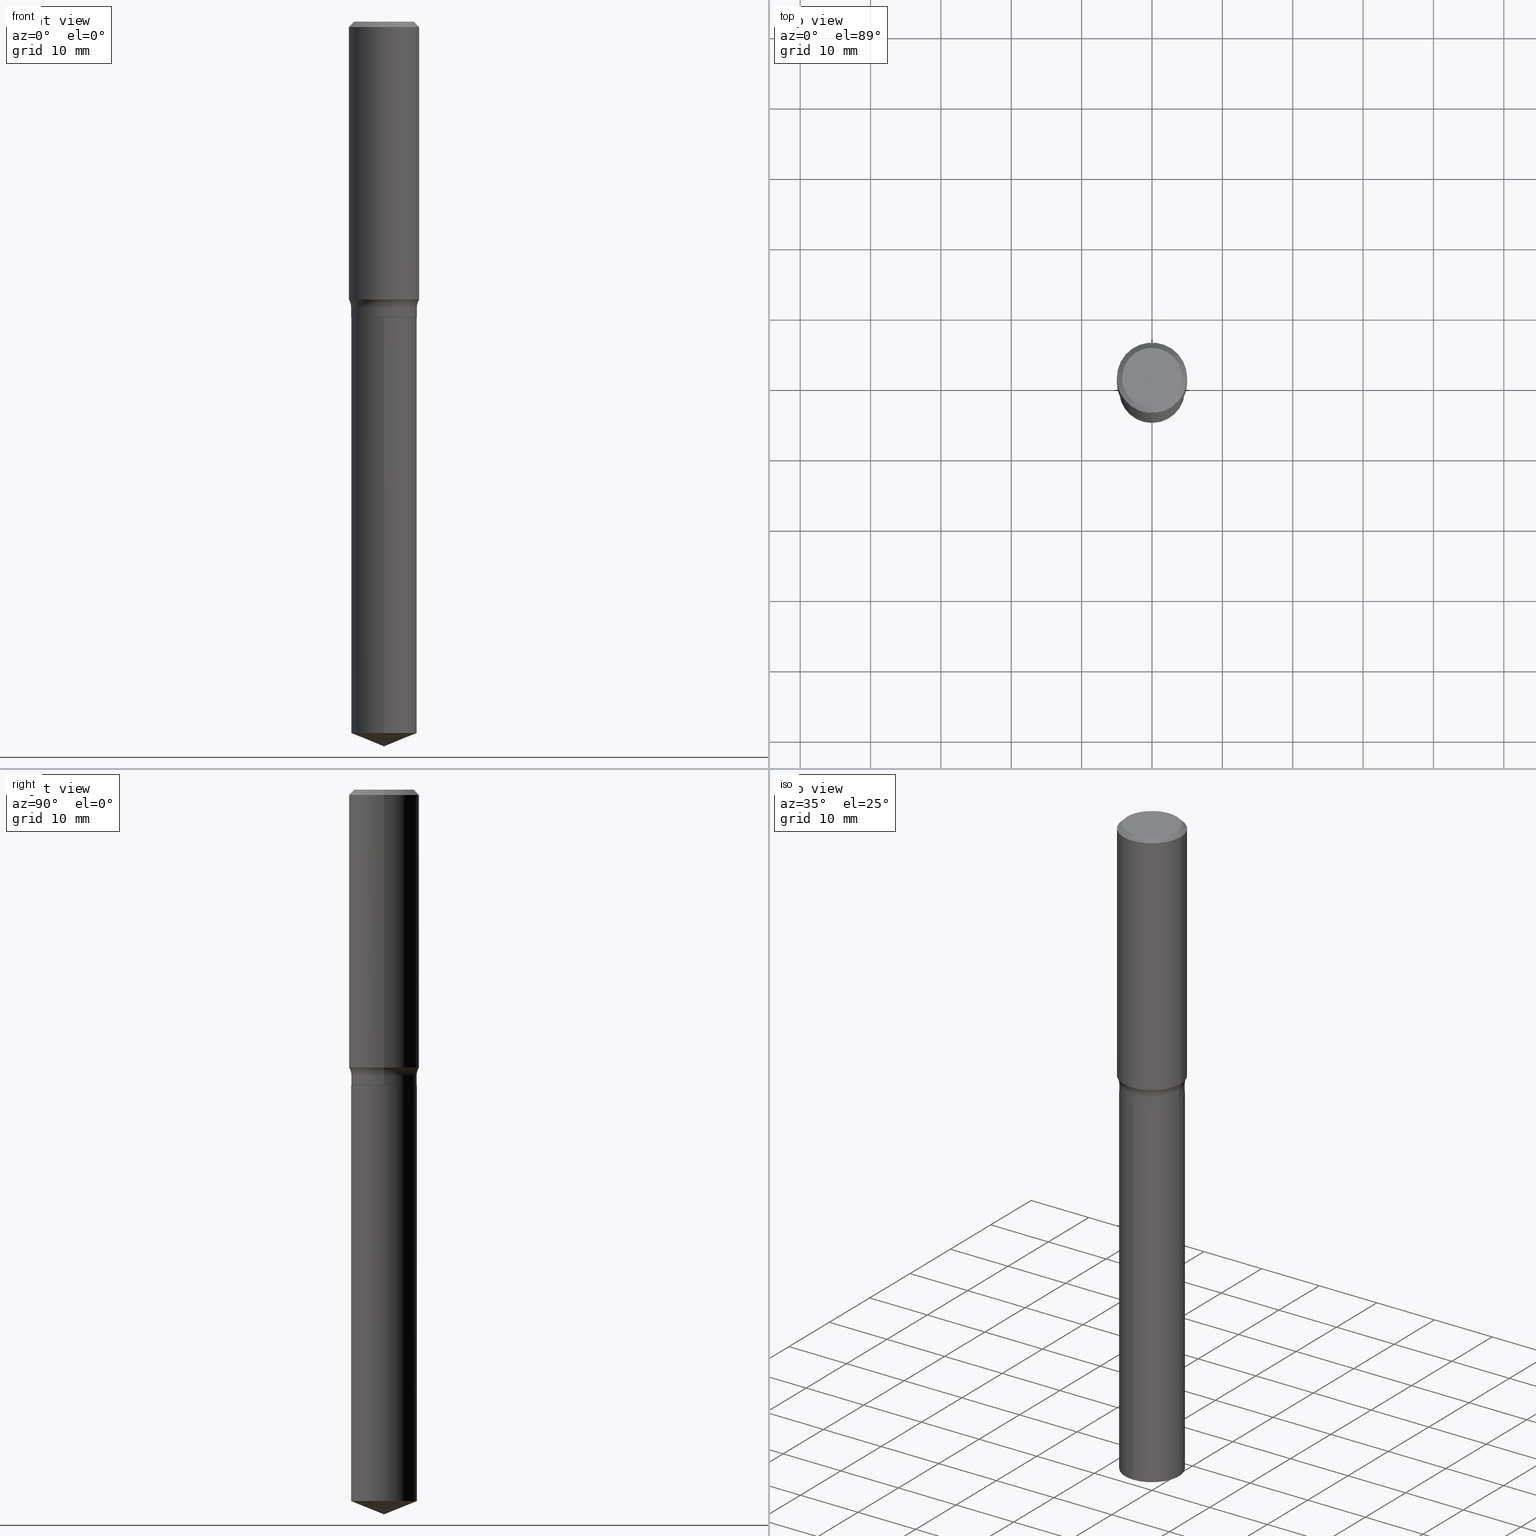
[diagram: canonical four-view strip — front | top / right | iso, engineering-drawing reading convention]
A machine part, canonical four-view strip (front | top / right | iso — engineering-drawing reading convention). The complete STEP part file that produces these views, byte-faithful:
ISO-10303-21;
HEADER;
FILE_DESCRIPTION (( 'STEP AP203' ),
    '1' );
FILE_NAME ('56856.STEP',
    '2024-04-19T14:29:32',
    ( '' ),
    ( '' ),
    'SwSTEP 2.0',
    'SolidWorks 2023',
    '' );
FILE_SCHEMA (( 'CONFIG_CONTROL_DESIGN' ));
ENDSEC;

DATA;
#1 = CARTESIAN_POINT ( 'NONE',  ( 3.907370058522611013E-29, -5.578688883203577685E-15, -1.597799999999999887 ) ) ;
#2 = VERTEX_POINT ( 'NONE', #128 ) ;
#3 = EDGE_CURVE ( 'NONE', #75, #169, #244, .T. ) ;
#4 = CC_DESIGN_APPROVAL ( #29, ( #351 ) ) ;
#5 = FACE_OUTER_BOUND ( 'NONE', #353, .T. ) ;
#6 = ORIENTED_EDGE ( 'NONE', *, *, #257, .T. ) ;
#7 = EDGE_CURVE ( 'NONE', #193, #320, #487, .T. ) ;
#8 = DIRECTION ( 'NONE',  ( 1.000000000000000000, -6.982962677686264344E-15, 0.000000000000000000 ) ) ;
#9 = ORIENTED_EDGE ( 'NONE', *, *, #3, .T. ) ;
#10 = CARTESIAN_POINT ( 'NONE',  ( 0.000000000000000000, 0.000000000000000000, 0.000000000000000000 ) ) ;
#11 = ORIENTED_EDGE ( 'NONE', *, *, #290, .T. ) ;
#12 = AXIS2_PLACEMENT_3D ( 'NONE', #32, #179, #483 ) ;
#13 = APPROVAL_DATE_TIME ( #348, #305 ) ;
#14 = ORIENTED_EDGE ( 'NONE', *, *, #85, .F. ) ;
#15 = CARTESIAN_POINT ( 'NONE',  ( -0.2620000000000000107, -3.717066915512115123E-15, -1.597799999999999887 ) ) ;
#16 = CC_DESIGN_PERSON_AND_ORGANIZATION_ASSIGNMENT ( #59, #208, ( #351 ) ) ;
#17 = EDGE_LOOP ( 'NONE', ( #84, #119 ) ) ;
#18 = PERSON_AND_ORGANIZATION ( #44, #374 ) ;
#19 = CARTESIAN_POINT ( 'NONE',  ( 4.043338124146504977E-29, -5.772815245643255982E-15, -1.653399999999999981 ) ) ;
#20 = DIRECTION ( 'NONE',  ( 1.000000000000000000, -6.982962677686266711E-15, 0.000000000000000000 ) ) ;
#21 = ORIENTED_EDGE ( 'NONE', *, *, #182, .T. ) ;
#22 = PERSON_AND_ORGANIZATION ( #44, #374 ) ;
#23 = CARTESIAN_POINT ( 'NONE',  ( 0.1968500000000001915, -6.803538488138588411E-15, -1.554910869675405705 ) ) ;
#24 = CARTESIAN_POINT ( 'NONE',  ( 4.042115389743411055E-29, -5.771069504973833690E-15, -1.652899999999999814 ) ) ;
#25 = DIRECTION ( 'NONE',  ( -2.445468806185136877E-29, 3.491481338843145188E-15, 1.000000000000000000 ) ) ;
#26 = CIRCLE ( 'NONE', #165, 0.1673224999999999851 ) ;
#27 = CIRCLE ( 'NONE', #242, 0.1839999999999999969 ) ;
#28 = CARTESIAN_POINT ( 'NONE',  ( 0.1968500000000000527, -1.453583746094018101E-15, -0.02952750000000018554 ) ) ;
#29 = APPROVAL ( #94, 'UNSPECIFIED' ) ;
#30 = DIRECTION ( 'NONE',  ( 1.000000000000000000, -6.982962677686265922E-15, 4.876176775795935793E-29 ) ) ;
#31 = CALENDAR_DATE ( 2024, 19, 4 ) ;
#32 = CARTESIAN_POINT ( 'NONE',  ( 3.907370058522611013E-29, -5.578688883203577685E-15, -1.597799999999999887 ) ) ;
#33 = EDGE_CURVE ( 'NONE', #419, #383, #467, .T. ) ;
#34 = FACE_OUTER_BOUND ( 'NONE', #145, .T. ) ;
#35 = DIRECTION ( 'NONE',  ( -2.445468806185136877E-29, 3.491481338843145188E-15, 1.000000000000000000 ) ) ;
#36 = ORIENTED_EDGE ( 'NONE', *, *, #232, .F. ) ;
#37 = CARTESIAN_POINT ( 'NONE',  ( 1.307398633798681744E-15, 0.1839999999999861469, -3.980659174446332660 ) ) ;
#38 = EDGE_LOOP ( 'NONE', ( #231, #111, #349, #220 ) ) ;
#39 = CC_DESIGN_APPROVAL ( #235, ( #473 ) ) ;
#40 = DIRECTION ( 'NONE',  ( 1.000000000000000000, -6.982962677686265922E-15, 0.000000000000000000 ) ) ;
#41 = ORIENTED_EDGE ( 'NONE', *, *, #429, .T. ) ;
#42 = DIRECTION ( 'NONE',  ( 6.982962677686265922E-15, 1.000000000000000000, -3.491586749282660968E-15 ) ) ;
#43 = ORIENTED_EDGE ( 'NONE', *, *, #60, .T. ) ;
#44 = PERSON ( 'UNSPECIFIED', 'UNSPECIFIED', 'UNSPECIFIED', ('UNSPECIFIED'), ('UNSPECIFIED'), ('UNSPECIFIED') ) ;
#45 = ORIENTED_EDGE ( 'NONE', *, *, #85, .T. ) ;
#46 = EDGE_CURVE ( 'NONE', #80, #419, #171, .T. ) ;
#47 = AXIS2_PLACEMENT_3D ( 'NONE', #172, #336, #298 ) ;
#48 = AXIS2_PLACEMENT_3D ( 'NONE', #357, #434, #239 ) ;
#49 = CARTESIAN_POINT ( 'NONE',  ( 9.916077529790332067E-29, -1.415838426834118836E-14, -4.054999999999999716 ) ) ;
#50 = CARTESIAN_POINT ( 'NONE',  ( -0.1839999999999999969, -4.367480560290121368E-15, -1.652899999999999814 ) ) ;
#51 = DIRECTION ( 'NONE',  ( -1.000000000000000000, 6.982962677686266711E-15, 0.000000000000000000 ) ) ;
#52 = VERTEX_POINT ( 'NONE', #50 ) ;
#53 = CC_DESIGN_PERSON_AND_ORGANIZATION_ASSIGNMENT ( #470, #278, ( #370 ) ) ;
#54 = ORIENTED_EDGE ( 'NONE', *, *, #69, .T. ) ;
#55 = APPLICATION_CONTEXT ( 'configuration controlled 3d designs of mechanical parts and assemblies' ) ;
#56 = COORDINATED_UNIVERSAL_TIME_OFFSET ( 5, 0, .BEHIND. ) ;
#57 = ORIENTED_EDGE ( 'NONE', *, *, #356, .T. ) ;
#58 = DIRECTION ( 'NONE',  ( -1.000000000000000000, 6.982962677686266711E-15, 0.000000000000000000 ) ) ;
#59 = PERSON_AND_ORGANIZATION ( #44, #374 ) ;
#60 = EDGE_CURVE ( 'NONE', #320, #193, #381, .T. ) ;
#61 = CARTESIAN_POINT ( 'NONE',  ( 7.220858017463207734E-31, -1.030947152326916363E-16, -0.02952750000000018554 ) ) ;
#62 = CLOSED_SHELL ( 'NONE', ( #323, #112, #491, #281, #399 ) ) ;
#63 = CIRCLE ( 'NONE', #312, 0.07799999999999999989 ) ;
#64 = AXIS2_PLACEMENT_3D ( 'NONE', #1, #492, #189 ) ;
#65 = CALENDAR_DATE ( 2024, 19, 4 ) ;
#66 = DIRECTION ( 'NONE',  ( 0.7071067811864267805, -2.468850131080992517E-15, 0.7071067811866682540 ) ) ;
#67 = PERSON_AND_ORGANIZATION ( #44, #374 ) ;
#68 = CARTESIAN_POINT ( 'NONE',  ( 4.043338124146503856E-29, -5.772815245643255193E-15, -1.653399999999999537 ) ) ;
#69 = EDGE_CURVE ( 'NONE', #419, #80, #26, .T. ) ;
#70 = DIRECTION ( 'NONE',  ( 1.000000000000000000, -6.982962677686264344E-15, 0.000000000000000000 ) ) ;
#71 = CONICAL_SURFACE ( 'NONE', #450, 0.1834999999999999964, 0.7853981633972775267 ) ;
#72 = LINE ( 'NONE', #346, #88 ) ;
#73 = EDGE_LOOP ( 'NONE', ( #36, #266, #459, #41 ) ) ;
#74 = CARTESIAN_POINT ( 'NONE',  ( 3.802486028189407095E-29, -5.428942285036045225E-15, -1.554910869675405705 ) ) ;
#75 = VERTEX_POINT ( 'NONE', #201 ) ;
#76 = CARTESIAN_POINT ( 'NONE',  ( -0.1839999999999999969, -4.367480560290121368E-15, -1.597799999999999887 ) ) ;
#77 = CIRCLE ( 'NONE', #86, 0.1968500000000000527 ) ;
#78 = CIRCLE ( 'NONE', #400, 0.1839999999999999969 ) ;
#79 = DIRECTION ( 'NONE',  ( -2.445395198468639385E-29, 3.491586749282660968E-15, 1.000000000000000000 ) ) ;
#80 = VERTEX_POINT ( 'NONE', #360 ) ;
#81 = DIRECTION ( 'NONE',  ( -2.445395198468639385E-29, 3.491586749282660968E-15, 1.000000000000000000 ) ) ;
#82 = EDGE_LOOP ( 'NONE', ( #327, #21, #389, #347 ) ) ;
#83 =( NAMED_UNIT ( * ) PLANE_ANGLE_UNIT ( ) SI_UNIT ( $, .RADIAN. ) );
#84 = ORIENTED_EDGE ( 'NONE', *, *, #60, .F. ) ;
#85 = EDGE_CURVE ( 'NONE', #355, #383, #77, .T. ) ;
#86 = AXIS2_PLACEMENT_3D ( 'NONE', #233, #390, #475 ) ;
#87 = FACE_OUTER_BOUND ( 'NONE', #433, .T. ) ;
#88 = VECTOR ( 'NONE', #423, 39.37007874015748143 ) ;
#89 = CARTESIAN_POINT ( 'NONE',  ( -0.1968500000000000527, 1.271501487869850317E-15, -0.02952750000000018554 ) ) ;
#90 = ADVANCED_FACE ( 'NONE', ( #325 ), #321, .T. ) ;
#91 = CARTESIAN_POINT ( 'NONE',  ( 4.043338124146504977E-29, -5.772815245643255982E-15, -1.653399999999999981 ) ) ;
#92 = DIRECTION ( 'NONE',  ( 0.000000000000000000, 0.000000000000000000, 1.000000000000000000 ) ) ;
#93 = FACE_OUTER_BOUND ( 'NONE', #207, .T. ) ;
#94 = APPROVAL_STATUS ( 'not_yet_approved' ) ;
#95 = CIRCLE ( 'NONE', #259, 0.1839999999999999969 ) ;
#96 = VERTEX_POINT ( 'NONE', #23 ) ;
#97 = AXIS2_PLACEMENT_3D ( 'NONE', #15, #324, #474 ) ;
#98 = DATE_AND_TIME ( #413, #410 ) ;
#99 = DIRECTION ( 'NONE',  ( -6.982962677686266711E-15, -1.000000000000000000, 3.491481338843145583E-15 ) ) ;
#100 = ADVANCED_FACE ( 'NONE', ( #442 ), #123, .F. ) ;
#101 = DATE_TIME_ROLE ( 'classification_date' ) ;
#102 = CARTESIAN_POINT ( 'NONE',  ( 0.2620000000000000107, -7.408225104757379690E-15, -1.597799999999999887 ) ) ;
#103 = LINE ( 'NONE', #412, #456 ) ;
#104 = PERSON_AND_ORGANIZATION_ROLE ( 'classification_officer' ) ;
#105 = DIRECTION ( 'NONE',  ( -6.982962677686265133E-15, -1.000000000000000000, 2.969399993113329585E-15 ) ) ;
#106 = CARTESIAN_POINT ( 'NONE',  ( -0.1834999999999999964, -4.466320098349360965E-15, -1.653399999999999981 ) ) ;
#107 = DIRECTION ( 'NONE',  ( -2.445468806185136597E-29, 3.491481338843145583E-15, 1.000000000000000000 ) ) ;
#108 = ORIENTED_EDGE ( 'NONE', *, *, #378, .T. ) ;
#109 = CIRCLE ( 'NONE', #294, 0.1839999999999999969 ) ;
#110 = LINE ( 'NONE', #262, #392 ) ;
#111 = ORIENTED_EDGE ( 'NONE', *, *, #218, .T. ) ;
#112 = ADVANCED_FACE ( 'NONE', ( #93 ), #147, .T. ) ;
#113 = CARTESIAN_POINT ( 'NONE',  ( -1.284865132694232346E-15, -0.1840000000000057701, -1.653399999999999093 ) ) ;
#114 = ORIENTED_EDGE ( 'NONE', *, *, #297, .T. ) ;
#115 = CARTESIAN_POINT ( 'NONE',  ( -0.1968500000000000527, -1.367315124790610273E-15, -0.02952750000000018554 ) ) ;
#116 = ORIENTED_EDGE ( 'NONE', *, *, #264, .F. ) ;
#117 = AXIS2_PLACEMENT_3D ( 'NONE', #166, #168, #395 ) ;
#118 = DIRECTION ( 'NONE',  ( -2.445395198468639105E-29, 3.491586749282660968E-15, 1.000000000000000000 ) ) ;
#119 = ORIENTED_EDGE ( 'NONE', *, *, #7, .F. ) ;
#120 = DIRECTION ( 'NONE',  ( -2.445468806185136597E-29, 3.491481338843145583E-15, 1.000000000000000000 ) ) ;
#121 = CARTESIAN_POINT ( 'NONE',  ( -1.001697619218021790E-46, 1.430158722866389718E-32, 4.096137381448108366E-18 ) ) ;
#122 = ORIENTED_EDGE ( 'NONE', *, *, #176, .T. ) ;
#123 = TOROIDAL_SURFACE ( 'NONE', #365, 0.2620000000000000107, 0.07799999999999997213 ) ;
#124 = APPROVAL_PERSON_ORGANIZATION ( #138, #235, #401 ) ;
#125 =( CONVERSION_BASED_UNIT ( 'INCH', #230 ) LENGTH_UNIT ( ) NAMED_UNIT ( #249 ) );
#126 = VERTEX_POINT ( 'NONE', #135 ) ;
#127 = CARTESIAN_POINT ( 'NONE',  ( -8.635920228172456826E-28, 1.233058352646283818E-13, 35.31507874015748172 ) ) ;
#128 = CARTESIAN_POINT ( 'NONE',  ( -0.1968500000000001915, -4.030238909692286649E-15, -1.554910869675405705 ) ) ;
#129 = APPLICATION_PROTOCOL_DEFINITION ( 'international standard', 'config_control_design', 1994, #55 ) ;
#130 = ORIENTED_EDGE ( 'NONE', *, *, #476, .T. ) ;
#131 = FACE_OUTER_BOUND ( 'NONE', #268, .T. ) ;
#132 = AXIS2_PLACEMENT_3D ( 'NONE', #258, #310, #151 ) ;
#133 = EDGE_CURVE ( 'NONE', #126, #339, #449, .T. ) ;
#134 = APPROVAL_STATUS ( 'not_yet_approved' ) ;
#135 = CARTESIAN_POINT ( 'NONE',  ( 1.307398633798681744E-15, 0.1839999999999941960, -1.653400000000000203 ) ) ;
#136 = DATE_TIME_ROLE ( 'creation_date' ) ;
#137 = DIRECTION ( 'NONE',  ( 1.000000000000000000, -6.982962677686270655E-15, 0.000000000000000000 ) ) ;
#138 = PERSON_AND_ORGANIZATION ( #44, #374 ) ;
#139 = CYLINDRICAL_SURFACE ( 'NONE', #234, 0.1839999999999999969 ) ;
#140 = CIRCLE ( 'NONE', #48, 0.1968500000000000527 ) ;
#141 = PERSON_AND_ORGANIZATION_ROLE ( 'design_supplier' ) ;
#142 = PLANE ( 'NONE',  #350 ) ;
#143 = DIRECTION ( 'NONE',  ( -2.445468806185136597E-29, 3.491481338843145583E-15, 1.000000000000000000 ) ) ;
#144 = CARTESIAN_POINT ( 'NONE',  ( 3.802486028189407095E-29, -5.428942285036045225E-15, -1.554910869675405705 ) ) ;
#145 = EDGE_LOOP ( 'NONE', ( #431, #238, #380, #402 ) ) ;
#146 = ADVANCED_FACE ( 'NONE', ( #170 ), #142, .F. ) ;
#147 = CONICAL_SURFACE ( 'NONE', #342, 97.44436430773001234, 1.186823891356150629 ) ;
#148 = AXIS2_PLACEMENT_3D ( 'NONE', #183, #79, #149 ) ;
#149 = DIRECTION ( 'NONE',  ( -6.982962677686265133E-15, -1.000000000000000000, 2.969399993113329585E-15 ) ) ;
#150 = ORIENTED_EDGE ( 'NONE', *, *, #274, .F. ) ;
#151 = DIRECTION ( 'NONE',  ( -6.982962677686265133E-15, -1.000000000000000000, 2.969399993113329585E-15 ) ) ;
#152 = EDGE_LOOP ( 'NONE', ( #122, #443 ) ) ;
#153 = EDGE_CURVE ( 'NONE', #304, #154, #369, .T. ) ;
#154 = VERTEX_POINT ( 'NONE', #333 ) ;
#155 = VECTOR ( 'NONE', #478, 39.37007874015748143 ) ;
#156 = APPROVAL_PERSON_ORGANIZATION ( #18, #305, #162 ) ;
#157 = APPROVAL_STATUS ( 'not_yet_approved' ) ;
#158 = ORIENTED_EDGE ( 'NONE', *, *, #384, .F. ) ;
#159 = CARTESIAN_POINT ( 'NONE',  ( 0.000000000000000000, 0.000000000000000000, 0.000000000000000000 ) ) ;
#160 = ORIENTED_EDGE ( 'NONE', *, *, #356, .F. ) ;
#161 = EDGE_CURVE ( 'NONE', #154, #343, #398, .T. ) ;
#162 = APPROVAL_ROLE ( '' ) ;
#163 = DIRECTION ( 'NONE',  ( -6.474490251793192828E-15, -0.9271838545667884235, 0.3746065934159091837 ) ) ;
#164 = EDGE_CURVE ( 'NONE', #343, #154, #241, .T. ) ;
#165 = AXIS2_PLACEMENT_3D ( 'NONE', #435, #440, #198 ) ;
#166 = CARTESIAN_POINT ( 'NONE',  ( 0.000000000000000000, 0.000000000000000000, 0.000000000000000000 ) ) ;
#167 = DIRECTION ( 'NONE',  ( -2.445468806185136597E-29, 3.491481338843145583E-15, 1.000000000000000000 ) ) ;
#168 = DIRECTION ( 'NONE',  ( -2.445468806185136597E-29, 3.491481338843145583E-15, 1.000000000000000000 ) ) ;
#169 = VERTEX_POINT ( 'NONE', #212 ) ;
#170 = FACE_OUTER_BOUND ( 'NONE', #17, .T. ) ;
#171 = CIRCLE ( 'NONE', #471, 0.1673224999999999851 ) ;
#172 = CARTESIAN_POINT ( 'NONE',  ( 3.907370058522611013E-29, -5.578688883203577685E-15, -1.597799999999999887 ) ) ;
#173 = AXIS2_PLACEMENT_3D ( 'NONE', #367, #292, #448 ) ;
#174 = ADVANCED_FACE ( 'NONE', ( #486 ), #139, .T. ) ;
#175 = DIRECTION ( 'NONE',  ( -6.982962677686265133E-15, -1.000000000000000000, 3.498761904101770760E-15 ) ) ;
#176 = EDGE_CURVE ( 'NONE', #339, #126, #216, .T. ) ;
#177 = DIRECTION ( 'NONE',  ( 1.000000000000000000, -6.982962677686267499E-15, 4.883557194083114022E-29 ) ) ;
#178 = SHAPE_DEFINITION_REPRESENTATION ( #368, #203 ) ;
#179 = DIRECTION ( 'NONE',  ( -2.445468806185136597E-29, 3.491481338843145583E-15, 1.000000000000000000 ) ) ;
#180 = CIRCLE ( 'NONE', #227, 0.1968500000000002192 ) ;
#181 = CYLINDRICAL_SURFACE ( 'NONE', #148, 0.1839999999999999969 ) ;
#182 = EDGE_CURVE ( 'NONE', #52, #343, #210, .T. ) ;
#183 = CARTESIAN_POINT ( 'NONE',  ( 4.043338124146503856E-29, -5.772815245643255193E-15, -1.653399999999999537 ) ) ;
#184 = ORIENTED_EDGE ( 'NONE', *, *, #318, .T. ) ;
#185 = DIRECTION ( 'NONE',  ( -6.982962677686265133E-15, -1.000000000000000000, 2.969399993113329585E-15 ) ) ;
#186 = ORIENTED_EDGE ( 'NONE', *, *, #33, .F. ) ;
#187 = EDGE_CURVE ( 'NONE', #96, #154, #63, .T. ) ;
#188 = CONICAL_SURFACE ( 'NONE', #313, 0.1968500000000000527, 0.7853981633974460586 ) ;
#189 = DIRECTION ( 'NONE',  ( 1.000000000000000000, -6.982962677686267499E-15, 4.883557194083114022E-29 ) ) ;
#190 = EDGE_LOOP ( 'NONE', ( #54, #284 ) ) ;
#191 = CC_DESIGN_DATE_AND_TIME_ASSIGNMENT ( #98, #101, ( #473 ) ) ;
#192 = CYLINDRICAL_SURFACE ( 'NONE', #488, 0.1839999999999999969 ) ;
#193 = VERTEX_POINT ( 'NONE', #106 ) ;
#194 = CALENDAR_DATE ( 2024, 19, 4 ) ;
#195 = ORIENTED_EDGE ( 'NONE', *, *, #476, .F. ) ;
#196 = VECTOR ( 'NONE', #25, 39.37007874015748143 ) ;
#197 = TOROIDAL_SURFACE ( 'NONE', #64, 0.2620000000000000107, 0.07799999999999997213 ) ;
#198 = DIRECTION ( 'NONE',  ( 1.000000000000000000, -6.982962677686267499E-15, 4.876294436782262290E-29 ) ) ;
#199 =( LENGTH_UNIT ( ) NAMED_UNIT ( * ) SI_UNIT ( $, .METRE. ) );
#200 = CC_DESIGN_PERSON_AND_ORGANIZATION_ASSIGNMENT ( #22, #275, ( #484 ) ) ;
#201 = CARTESIAN_POINT ( 'NONE',  ( 9.916077529790332067E-29, -1.415838426834118836E-14, -4.054999999999999716 ) ) ;
#202 = DIRECTION ( 'NONE',  ( 1.000000000000000000, -6.982962677686267499E-15, 4.876176775795935793E-29 ) ) ;
#203 = ADVANCED_BREP_SHAPE_REPRESENTATION ( '56856', ( #425, #252, #438 ), #211 ) ;
#204 = FACE_OUTER_BOUND ( 'NONE', #73, .T. ) ;
#205 = ORIENTED_EDGE ( 'NONE', *, *, #257, .F. ) ;
#206 = ADVANCED_FACE ( 'NONE', ( #256 ), #416, .T. ) ;
#207 = EDGE_LOOP ( 'NONE', ( #276, #422, #205 ) ) ;
#208 = PERSON_AND_ORGANIZATION_ROLE ( 'creator' ) ;
#209 = CARTESIAN_POINT ( 'NONE',  ( 2.324487579557410015E-29, -8.234307056392298500E-15, -1.653399999999999981 ) ) ;
#210 = LINE ( 'NONE', #364, #196 ) ;
#211 =( GEOMETRIC_REPRESENTATION_CONTEXT ( 3 ) GLOBAL_UNCERTAINTY_ASSIGNED_CONTEXT ( ( #404 ) ) GLOBAL_UNIT_ASSIGNED_CONTEXT ( ( #125, #83, #436 ) ) REPRESENTATION_CONTEXT ( 'NONE', 'WORKASPACE' ) );
#212 = CARTESIAN_POINT ( 'NONE',  ( -1.284865132694176337E-15, -0.1840000000000139579, -3.980659174446331772 ) ) ;
#213 = SECURITY_CLASSIFICATION_LEVEL ( 'unclassified' ) ;
#214 = CARTESIAN_POINT ( 'NONE',  ( 3.907370058522611013E-29, -5.578688883203577685E-15, -1.597799999999999887 ) ) ;
#215 = PLANE ( 'NONE',  #329 ) ;
#216 = CIRCLE ( 'NONE', #302, 0.1839999999999999969 ) ;
#217 = VECTOR ( 'NONE', #118, 39.37007874015748143 ) ;
#218 = EDGE_CURVE ( 'NONE', #52, #304, #95, .T. ) ;
#219 = DIRECTION ( 'NONE',  ( -2.445468806185136597E-29, 3.491481338843145583E-15, 1.000000000000000000 ) ) ;
#220 = ORIENTED_EDGE ( 'NONE', *, *, #164, .F. ) ;
#221 = CARTESIAN_POINT ( 'NONE',  ( 1.307398633798624552E-15, 0.1839999999999942237, -1.653400000000000203 ) ) ;
#222 = ADVANCED_FACE ( 'NONE', ( #330 ), #215, .F. ) ;
#223 = ORIENTED_EDGE ( 'NONE', *, *, #218, .F. ) ;
#224 = CARTESIAN_POINT ( 'NONE',  ( 0.1968500000000000527, -1.477690918335233688E-15, -0.02952750000000018554 ) ) ;
#225 = ORIENTED_EDGE ( 'NONE', *, *, #378, .F. ) ;
#226 = VECTOR ( 'NONE', #163, 39.37007874015748854 ) ;
#227 = AXIS2_PLACEMENT_3D ( 'NONE', #74, #219, #267 ) ;
#228 = LINE ( 'NONE', #337, #359 ) ;
#229 = ORIENTED_EDGE ( 'NONE', *, *, #232, .T. ) ;
#230 = LENGTH_MEASURE_WITH_UNIT ( LENGTH_MEASURE( 0.02539999999999999897 ), #199 );
#231 = ORIENTED_EDGE ( 'NONE', *, *, #182, .F. ) ;
#232 = EDGE_CURVE ( 'NONE', #80, #355, #328, .T. ) ;
#233 = CARTESIAN_POINT ( 'NONE',  ( 7.220858017463207734E-31, -1.030947152326916363E-16, -0.02952750000000018554 ) ) ;
#234 = AXIS2_PLACEMENT_3D ( 'NONE', #405, #295, #451 ) ;
#235 = APPROVAL ( #134, 'UNSPECIFIED' ) ;
#236 = DIRECTION ( 'NONE',  ( -0.7071067811865459074, 2.468850131082240100E-15, -0.7071067811865491270 ) ) ;
#237 = CARTESIAN_POINT ( 'NONE',  ( 4.043338124146504977E-29, -5.772815245643255982E-15, -1.653399999999999981 ) ) ;
#238 = ORIENTED_EDGE ( 'NONE', *, *, #334, .T. ) ;
#239 = DIRECTION ( 'NONE',  ( 1.000000000000000000, -6.982962677686266711E-15, 0.000000000000000000 ) ) ;
#240 = EDGE_LOOP ( 'NONE', ( #311, #477, #57, #345 ) ) ;
#241 = CIRCLE ( 'NONE', #47, 0.1839999999999999969 ) ;
#242 = AXIS2_PLACEMENT_3D ( 'NONE', #432, #143, #8 ) ;
#243 = COORDINATED_UNIVERSAL_TIME_OFFSET ( 5, 0, .BEHIND. ) ;
#244 = LINE ( 'NONE', #49, #226 ) ;
#245 = DIRECTION ( 'NONE',  ( -1.000000000000000000, 6.982962677686265922E-15, -4.876176775795935793E-29 ) ) ;
#246 = CARTESIAN_POINT ( 'NONE',  ( -5.008488096090108951E-47, 7.150793614331948590E-33, 2.048068690724054183E-18 ) ) ;
#247 = CLOSED_SHELL ( 'NONE', ( #406, #206, #248, #363, #403, #174, #100, #455, #411, #222, #146, #90 ) ) ;
#248 = ADVANCED_FACE ( 'NONE', ( #131 ), #407, .T. ) ;
#249 = DIMENSIONAL_EXPONENTS ( 1.000000000000000000, 0.000000000000000000, 0.000000000000000000, 0.000000000000000000, 0.000000000000000000, 0.000000000000000000, 0.000000000000000000 ) ;
#250 = LOCAL_TIME ( 10, 29, 32.00000000000000000, #56 ) ;
#251 = DIRECTION ( 'NONE',  ( 2.445468806185136597E-29, -3.491481338843145583E-15, -1.000000000000000000 ) ) ;
#252 = MANIFOLD_SOLID_BREP ( 'Body-Move/Copy2[2]', #247 ) ;
#253 = COORDINATED_UNIVERSAL_TIME_OFFSET ( 5, 0, .BEHIND. ) ;
#254 = DIRECTION ( 'NONE',  ( -6.982962677686265133E-15, -1.000000000000000000, 2.969399993113329585E-15 ) ) ;
#255 = EDGE_CURVE ( 'NONE', #320, #304, #103, .T. ) ;
#256 = FACE_OUTER_BOUND ( 'NONE', #463, .T. ) ;
#257 = EDGE_CURVE ( 'NONE', #169, #263, #78, .T. ) ;
#258 = CARTESIAN_POINT ( 'NONE',  ( 4.043338124146503856E-29, -5.772815245643255193E-15, -1.653399999999999537 ) ) ;
#259 = AXIS2_PLACEMENT_3D ( 'NONE', #24, #415, #70 ) ;
#260 = LOCAL_TIME ( 10, 29, 32.00000000000000000, #489 ) ;
#261 = ORIENTED_EDGE ( 'NONE', *, *, #297, .F. ) ;
#262 = CARTESIAN_POINT ( 'NONE',  ( -0.1968500000000001082, 1.398703375343757985E-15, -9.682923725166787881E-30 ) ) ;
#263 = VERTEX_POINT ( 'NONE', #37 ) ;
#264 = EDGE_CURVE ( 'NONE', #2, #96, #180, .T. ) ;
#265 = CYLINDRICAL_SURFACE ( 'NONE', #132, 0.1839999999999999969 ) ;
#266 = ORIENTED_EDGE ( 'NONE', *, *, #69, .F. ) ;
#267 = DIRECTION ( 'NONE',  ( 1.000000000000000000, -6.982962677686265922E-15, 0.000000000000000000 ) ) ;
#268 = EDGE_LOOP ( 'NONE', ( #108, #11, #14, #160 ) ) ;
#269 = AXIS2_PLACEMENT_3D ( 'NONE', #344, #462, #42 ) ;
#270 = FACE_OUTER_BOUND ( 'NONE', #358, .T. ) ;
#271 = ORIENTED_EDGE ( 'NONE', *, *, #255, .T. ) ;
#272 = CARTESIAN_POINT ( 'NONE',  ( -0.1673224999999999851, 1.219954130253505460E-15, 4.096137381439757534E-18 ) ) ;
#273 = CARTESIAN_POINT ( 'NONE',  ( 4.043338124146504977E-29, -5.772815245643255982E-15, -1.653399999999999981 ) ) ;
#274 = EDGE_CURVE ( 'NONE', #169, #339, #418, .T. ) ;
#275 = PERSON_AND_ORGANIZATION_ROLE ( 'design_owner' ) ;
#276 = ORIENTED_EDGE ( 'NONE', *, *, #3, .F. ) ;
#277 = LOCAL_TIME ( 10, 29, 32.00000000000000000, #319 ) ;
#278 = PERSON_AND_ORGANIZATION_ROLE ( 'creator' ) ;
#279 = EDGE_LOOP ( 'NONE', ( #43, #114, #158, #377 ) ) ;
#280 = CYLINDRICAL_SURFACE ( 'NONE', #117, 0.1968500000000001082 ) ;
#281 = ADVANCED_FACE ( 'NONE', ( #34 ), #265, .T. ) ;
#282 = DIRECTION ( 'NONE',  ( 1.000000000000000000, -6.982962677686266711E-15, 0.000000000000000000 ) ) ;
#283 = APPLICATION_PROTOCOL_DEFINITION ( 'international standard', 'config_control_design', 1994, #430 ) ;
#284 = ORIENTED_EDGE ( 'NONE', *, *, #46, .T. ) ;
#285 = AXIS2_PLACEMENT_3D ( 'NONE', #144, #385, #40 ) ;
#286 = APPROVAL_DATE_TIME ( #288, #235 ) ;
#287 = DIRECTION ( 'NONE',  ( 2.438088387897960049E-29, -3.491481338843145188E-15, -1.000000000000000000 ) ) ;
#288 = DATE_AND_TIME ( #31, #250 ) ;
#289 = CARTESIAN_POINT ( 'NONE',  ( 4.043338124146503856E-29, -5.772815245643255193E-15, -1.653399999999999537 ) ) ;
#290 = EDGE_CURVE ( 'NONE', #2, #383, #110, .T. ) ;
#291 = APPROVAL_ROLE ( '' ) ;
#292 = DIRECTION ( 'NONE',  ( -2.445468806185136597E-29, 3.491481338843145583E-15, 1.000000000000000000 ) ) ;
#293 = VECTOR ( 'NONE', #447, 39.37007874015748143 ) ;
#294 = AXIS2_PLACEMENT_3D ( 'NONE', #306, #460, #382 ) ;
#295 = DIRECTION ( 'NONE',  ( -2.445468806185136597E-29, 3.491481338843145583E-15, 1.000000000000000000 ) ) ;
#296 = PERSON_AND_ORGANIZATION ( #44, #374 ) ;
#297 = EDGE_CURVE ( 'NONE', #193, #52, #427, .T. ) ;
#298 = DIRECTION ( 'NONE',  ( 1.000000000000000000, -6.982962677686264344E-15, 0.000000000000000000 ) ) ;
#299 = DIRECTION ( 'NONE',  ( -2.445468806185136877E-29, 3.491481338843145188E-15, 1.000000000000000000 ) ) ;
#300 = ORIENTED_EDGE ( 'NONE', *, *, #176, .F. ) ;
#301 = PLANE ( 'NONE',  #269 ) ;
#302 = AXIS2_PLACEMENT_3D ( 'NONE', #289, #452, #105 ) ;
#303 = CONICAL_SURFACE ( 'NONE', #428, 97.44436430773001234, 1.186823891356150629 ) ;
#304 = VERTEX_POINT ( 'NONE', #338 ) ;
#305 = APPROVAL ( #157, 'UNSPECIFIED' ) ;
#306 = CARTESIAN_POINT ( 'NONE',  ( 9.734406534929655028E-29, -1.389864254128657465E-14, -3.980659174446332216 ) ) ;
#307 = ORIENTED_EDGE ( 'NONE', *, *, #161, .T. ) ;
#308 = FACE_OUTER_BOUND ( 'NONE', #152, .T. ) ;
#309 = ORIENTED_EDGE ( 'NONE', *, *, #314, .F. ) ;
#310 = DIRECTION ( 'NONE',  ( -2.445395198468639385E-29, 3.491586749282660968E-15, 1.000000000000000000 ) ) ;
#311 = ORIENTED_EDGE ( 'NONE', *, *, #290, .F. ) ;
#312 = AXIS2_PLACEMENT_3D ( 'NONE', #102, #99, #137 ) ;
#313 = AXIS2_PLACEMENT_3D ( 'NONE', #352, #393, #51 ) ;
#314 = EDGE_CURVE ( 'NONE', #75, #263, #72, .T. ) ;
#315 = ORIENTED_EDGE ( 'NONE', *, *, #46, .F. ) ;
#316 = MECHANICAL_CONTEXT ( 'NONE', #55, 'mechanical' ) ;
#317 = ORIENTED_EDGE ( 'NONE', *, *, #187, .T. ) ;
#318 = EDGE_CURVE ( 'NONE', #263, #126, #458, .T. ) ;
#319 = COORDINATED_UNIVERSAL_TIME_OFFSET ( 5, 0, .BEHIND. ) ;
#320 = VERTEX_POINT ( 'NONE', #341 ) ;
#321 = CONICAL_SURFACE ( 'NONE', #340, 0.1834999999999999964, 0.7853981633972775267 ) ;
#322 = CC_DESIGN_SECURITY_CLASSIFICATION ( #473, ( #351 ) ) ;
#323 = ADVANCED_FACE ( 'NONE', ( #5 ), #181, .T. ) ;
#324 = DIRECTION ( 'NONE',  ( 7.105427357601001859E-15, 1.000000000000000000, -3.491481338843145583E-15 ) ) ;
#325 = FACE_OUTER_BOUND ( 'NONE', #424, .T. ) ;
#326 = DIRECTION ( 'NONE',  ( -6.982962677686265133E-15, -1.000000000000000000, 3.498761904101770760E-15 ) ) ;
#327 = ORIENTED_EDGE ( 'NONE', *, *, #384, .T. ) ;
#328 = LINE ( 'NONE', #28, #155 ) ;
#329 = AXIS2_PLACEMENT_3D ( 'NONE', #246, #287, #245 ) ;
#330 = FACE_OUTER_BOUND ( 'NONE', #190, .T. ) ;
#331 = CC_DESIGN_PERSON_AND_ORGANIZATION_ASSIGNMENT ( #482, #104, ( #473 ) ) ;
#332 = CARTESIAN_POINT ( 'NONE',  ( 0.1839999999999999969, -1.284865132694273169E-15, 8.972165267464521691E-30 ) ) ;
#333 = CARTESIAN_POINT ( 'NONE',  ( 0.1839999999999999969, -6.863554015897850066E-15, -1.597799999999999887 ) ) ;
#334 = EDGE_CURVE ( 'NONE', #263, #169, #109, .T. ) ;
#335 = DATE_AND_TIME ( #371, #366 ) ;
#336 = DIRECTION ( 'NONE',  ( -2.445468806185136597E-29, 3.491481338843145583E-15, 1.000000000000000000 ) ) ;
#337 = CARTESIAN_POINT ( 'NONE',  ( 0.1968500000000001082, -1.374596203102542397E-15, 9.598753983154305062E-30 ) ) ;
#338 = CARTESIAN_POINT ( 'NONE',  ( 0.1839999999999999969, -7.055934637668106859E-15, -1.652899999999999814 ) ) ;
#339 = VERTEX_POINT ( 'NONE', #113 ) ;
#340 = AXIS2_PLACEMENT_3D ( 'NONE', #91, #468, #396 ) ;
#341 = CARTESIAN_POINT ( 'NONE',  ( 0.1834999999999999964, -7.054188896998686144E-15, -1.653399999999999981 ) ) ;
#342 = AXIS2_PLACEMENT_3D ( 'NONE', #481, #445, #175 ) ;
#343 = VERTEX_POINT ( 'NONE', #76 ) ;
#344 = CARTESIAN_POINT ( 'NONE',  ( 4.043338124146503856E-29, -5.772815245643255193E-15, -1.653399999999999537 ) ) ;
#345 = ORIENTED_EDGE ( 'NONE', *, *, #429, .F. ) ;
#346 = CARTESIAN_POINT ( 'NONE',  ( 9.916323070170521281E-29, -1.415803569709979862E-14, -4.054999999999999716 ) ) ;
#347 = ORIENTED_EDGE ( 'NONE', *, *, #153, .F. ) ;
#348 = DATE_AND_TIME ( #194, #277 ) ;
#349 = ORIENTED_EDGE ( 'NONE', *, *, #153, .T. ) ;
#350 = AXIS2_PLACEMENT_3D ( 'NONE', #209, #490, #30 ) ;
#351 = PRODUCT_DEFINITION_FORMATION_WITH_SPECIFIED_SOURCE ( 'ANY', '', #484, .NOT_KNOWN. ) ;
#352 = CARTESIAN_POINT ( 'NONE',  ( 7.220858017463207734E-31, -1.030947152326916363E-16, -0.02952750000000018554 ) ) ;
#353 = EDGE_LOOP ( 'NONE', ( #6, #184, #300, #150 ) ) ;
#354 = DIRECTION ( 'NONE',  ( 1.000000000000000000, 0.000000000000000000, 0.000000000000000000 ) ) ;
#355 = VERTEX_POINT ( 'NONE', #224 ) ;
#356 = EDGE_CURVE ( 'NONE', #96, #355, #228, .T. ) ;
#357 = CARTESIAN_POINT ( 'NONE',  ( 7.220858017463207734E-31, -1.030947152326916363E-16, -0.02952750000000018554 ) ) ;
#358 = EDGE_LOOP ( 'NONE', ( #116, #130, #454, #386 ) ) ;
#359 = VECTOR ( 'NONE', #299, 39.37007874015748143 ) ;
#360 = CARTESIAN_POINT ( 'NONE',  ( 0.1673224999999999851, -1.300749711163072594E-15, 4.096137381456741925E-18 ) ) ;
#361 = EDGE_LOOP ( 'NONE', ( #195, #225, #317, #307 ) ) ;
#362 = APPROVAL_DATE_TIME ( #485, #29 ) ;
#363 = ADVANCED_FACE ( 'NONE', ( #270 ), #197, .F. ) ;
#364 = CARTESIAN_POINT ( 'NONE',  ( -0.1839999999999999969, 1.307398633798584320E-15, -9.050840566069027961E-30 ) ) ;
#365 = AXIS2_PLACEMENT_3D ( 'NONE', #214, #414, #177 ) ;
#366 = LOCAL_TIME ( 10, 29, 32.00000000000000000, #243 ) ;
#367 = CARTESIAN_POINT ( 'NONE',  ( 0.000000000000000000, 0.000000000000000000, 0.000000000000000000 ) ) ;
#368 = PRODUCT_DEFINITION_SHAPE ( 'NONE', 'NONE',  #370 ) ;
#369 = LINE ( 'NONE', #332, #293 ) ;
#370 = PRODUCT_DEFINITION ( 'UNKNOWN', '', #351, #446 ) ;
#371 = CALENDAR_DATE ( 2024, 19, 4 ) ;
#372 = DIRECTION ( 'NONE',  ( -2.445395198468639385E-29, 3.491586749282660968E-15, 1.000000000000000000 ) ) ;
#373 = AXIS2_PLACEMENT_3D ( 'NONE', #61, #251, #58 ) ;
#374 = ORGANIZATION ( 'UNSPECIFIED', 'UNSPECIFIED', '' ) ;
#375 = CARTESIAN_POINT ( 'NONE',  ( 9.734406534929655028E-29, -1.389864254128657465E-14, -3.980659174446332216 ) ) ;
#376 = CARTESIAN_POINT ( 'NONE',  ( -1.284865132694232346E-15, -0.1840000000000057701, -1.653399999999999093 ) ) ;
#377 = ORIENTED_EDGE ( 'NONE', *, *, #255, .F. ) ;
#378 = EDGE_CURVE ( 'NONE', #96, #2, #480, .T. ) ;
#379 = DIRECTION ( 'NONE',  ( -2.445395198468639105E-29, 3.491586749282660968E-15, 1.000000000000000000 ) ) ;
#380 = ORIENTED_EDGE ( 'NONE', *, *, #274, .T. ) ;
#381 = CIRCLE ( 'NONE', #479, 0.1834999999999999964 ) ;
#382 = DIRECTION ( 'NONE',  ( -6.982962677686265133E-15, -1.000000000000000000, 2.969399993113329585E-15 ) ) ;
#383 = VERTEX_POINT ( 'NONE', #115 ) ;
#384 = EDGE_CURVE ( 'NONE', #304, #52, #27, .T. ) ;
#385 = DIRECTION ( 'NONE',  ( -2.445468806185136597E-29, 3.491481338843145583E-15, 1.000000000000000000 ) ) ;
#386 = ORIENTED_EDGE ( 'NONE', *, *, #187, .F. ) ;
#387 = PRODUCT_RELATED_PRODUCT_CATEGORY ( 'detail', '', ( #484 ) ) ;
#388 = FACE_OUTER_BOUND ( 'NONE', #240, .T. ) ;
#389 = ORIENTED_EDGE ( 'NONE', *, *, #161, .F. ) ;
#390 = DIRECTION ( 'NONE',  ( -2.445468806185136597E-29, 3.491481338843145583E-15, 1.000000000000000000 ) ) ;
#391 = VECTOR ( 'NONE', #236, 39.37007874015748143 ) ;
#392 = VECTOR ( 'NONE', #35, 39.37007874015748143 ) ;
#393 = DIRECTION ( 'NONE',  ( 2.445468806185136597E-29, -3.491481338843145583E-15, -1.000000000000000000 ) ) ;
#394 = DIRECTION ( 'NONE',  ( 1.000000000000000000, -6.982962677686267499E-15, 4.876294436782262290E-29 ) ) ;
#395 = DIRECTION ( 'NONE',  ( 1.000000000000000000, -6.982962677686266711E-15, 4.876176775795935793E-29 ) ) ;
#396 = DIRECTION ( 'NONE',  ( 1.000000000000000000, -6.982962677686266711E-15, 0.000000000000000000 ) ) ;
#397 = DIRECTION ( 'NONE',  ( -2.445468806185136597E-29, 3.491481338843145583E-15, 1.000000000000000000 ) ) ;
#398 = CIRCLE ( 'NONE', #12, 0.1839999999999999969 ) ;
#399 = ADVANCED_FACE ( 'NONE', ( #308 ), #301, .F. ) ;
#400 = AXIS2_PLACEMENT_3D ( 'NONE', #375, #81, #185 ) ;
#401 = APPROVAL_ROLE ( '' ) ;
#402 = ORIENTED_EDGE ( 'NONE', *, *, #133, .F. ) ;
#403 = ADVANCED_FACE ( 'NONE', ( #453 ), #192, .T. ) ;
#404 = UNCERTAINTY_MEASURE_WITH_UNIT (LENGTH_MEASURE( 1.000000000000000082E-05 ), #125, 'distance_accuracy_value', 'NONE');
#405 = CARTESIAN_POINT ( 'NONE',  ( 0.000000000000000000, 0.000000000000000000, 0.000000000000000000 ) ) ;
#406 = ADVANCED_FACE ( 'NONE', ( #439 ), #71, .T. ) ;
#407 = CYLINDRICAL_SURFACE ( 'NONE', #173, 0.1968500000000001082 ) ;
#408 = AXIS2_PLACEMENT_3D ( 'NONE', #68, #372, #254 ) ;
#409 = VECTOR ( 'NONE', #464, 39.37007874015748143 ) ;
#410 = LOCAL_TIME ( 10, 29, 32.00000000000000000, #253 ) ;
#411 = ADVANCED_FACE ( 'NONE', ( #204 ), #188, .T. ) ;
#412 = CARTESIAN_POINT ( 'NONE',  ( 0.1834999999999999964, -7.054188896998686144E-15, -1.653399999999999981 ) ) ;
#413 = CALENDAR_DATE ( 2024, 19, 4 ) ;
#414 = DIRECTION ( 'NONE',  ( -2.445468806185136597E-29, 3.491481338843145583E-15, 1.000000000000000000 ) ) ;
#415 = DIRECTION ( 'NONE',  ( -2.445468806185136597E-29, 3.491481338843145583E-15, 1.000000000000000000 ) ) ;
#416 = CONICAL_SURFACE ( 'NONE', #373, 0.1968500000000000527, 0.7853981633974460586 ) ;
#417 = APPROVAL_PERSON_ORGANIZATION ( #67, #29, #291 ) ;
#418 = LINE ( 'NONE', #376, #457 ) ;
#419 = VERTEX_POINT ( 'NONE', #272 ) ;
#420 = CC_DESIGN_PERSON_AND_ORGANIZATION_ASSIGNMENT ( #296, #141, ( #351 ) ) ;
#421 = CARTESIAN_POINT ( 'NONE',  ( -0.1834999999999999964, -4.468969325523472955E-15, -1.653399999999999981 ) ) ;
#422 = ORIENTED_EDGE ( 'NONE', *, *, #314, .T. ) ;
#423 = DIRECTION ( 'NONE',  ( 6.588037525764807068E-15, 0.9271838545667910880, 0.3746065934159027999 ) ) ;
#424 = EDGE_LOOP ( 'NONE', ( #261, #461, #271, #223 ) ) ;
#425 = MANIFOLD_SOLID_BREP ( 'Body-Move/Copy2[1]', #62 ) ;
#426 = AXIS2_PLACEMENT_3D ( 'NONE', #19, #437, #282 ) ;
#427 = LINE ( 'NONE', #421, #409 ) ;
#428 = AXIS2_PLACEMENT_3D ( 'NONE', #127, #441, #326 ) ;
#429 = EDGE_CURVE ( 'NONE', #383, #355, #140, .T. ) ;
#430 = APPLICATION_CONTEXT ( 'configuration controlled 3d designs of mechanical parts and assemblies' ) ;
#431 = ORIENTED_EDGE ( 'NONE', *, *, #318, .F. ) ;
#432 = CARTESIAN_POINT ( 'NONE',  ( 4.042115389743411055E-29, -5.771069504973833690E-15, -1.652899999999999814 ) ) ;
#433 = EDGE_LOOP ( 'NONE', ( #309, #9, #466 ) ) ;
#434 = DIRECTION ( 'NONE',  ( -2.445468806185136597E-29, 3.491481338843145583E-15, 1.000000000000000000 ) ) ;
#435 = CARTESIAN_POINT ( 'NONE',  ( -1.001697619218021790E-46, 1.430158722866389718E-32, 4.096137381448108366E-18 ) ) ;
#436 =( NAMED_UNIT ( * ) SI_UNIT ( $, .STERADIAN. ) SOLID_ANGLE_UNIT ( ) );
#437 = DIRECTION ( 'NONE',  ( -2.445468806185136597E-29, 3.491481338843145583E-15, 1.000000000000000000 ) ) ;
#438 = AXIS2_PLACEMENT_3D ( 'NONE', #159, #92, #354 ) ;
#439 = FACE_OUTER_BOUND ( 'NONE', #279, .T. ) ;
#440 = DIRECTION ( 'NONE',  ( -2.445468806185136597E-29, 3.491481338843145583E-15, 1.000000000000000000 ) ) ;
#441 = DIRECTION ( 'NONE',  ( -2.445395198468639385E-29, 3.491586749282660968E-15, 1.000000000000000000 ) ) ;
#442 = FACE_OUTER_BOUND ( 'NONE', #361, .T. ) ;
#443 = ORIENTED_EDGE ( 'NONE', *, *, #133, .T. ) ;
#444 = CC_DESIGN_APPROVAL ( #305, ( #370 ) ) ;
#445 = DIRECTION ( 'NONE',  ( -2.445395198468639385E-29, 3.491586749282660968E-15, 1.000000000000000000 ) ) ;
#446 = DESIGN_CONTEXT ( 'detailed design', #430, 'design' ) ;
#447 = DIRECTION ( 'NONE',  ( -2.445468806185136877E-29, 3.491481338843145188E-15, 1.000000000000000000 ) ) ;
#448 = DIRECTION ( 'NONE',  ( 1.000000000000000000, -6.982962677686266711E-15, 4.876176775795935793E-29 ) ) ;
#449 = CIRCLE ( 'NONE', #408, 0.1839999999999999969 ) ;
#450 = AXIS2_PLACEMENT_3D ( 'NONE', #237, #120, #20 ) ;
#451 = DIRECTION ( 'NONE',  ( 1.000000000000000000, -6.982962677686267499E-15, 4.876176775795935793E-29 ) ) ;
#452 = DIRECTION ( 'NONE',  ( -2.445395198468639385E-29, 3.491586749282660968E-15, 1.000000000000000000 ) ) ;
#453 = FACE_OUTER_BOUND ( 'NONE', #82, .T. ) ;
#454 = ORIENTED_EDGE ( 'NONE', *, *, #164, .T. ) ;
#455 = ADVANCED_FACE ( 'NONE', ( #388 ), #280, .T. ) ;
#456 = VECTOR ( 'NONE', #66, 39.37007874015748143 ) ;
#457 = VECTOR ( 'NONE', #379, 39.37007874015748143 ) ;
#458 = LINE ( 'NONE', #221, #217 ) ;
#459 = ORIENTED_EDGE ( 'NONE', *, *, #33, .T. ) ;
#460 = DIRECTION ( 'NONE',  ( -2.445395198468639385E-29, 3.491586749282660968E-15, 1.000000000000000000 ) ) ;
#461 = ORIENTED_EDGE ( 'NONE', *, *, #7, .T. ) ;
#462 = DIRECTION ( 'NONE',  ( 2.445395198468638824E-29, -3.491586749282660968E-15, -1.000000000000000000 ) ) ;
#463 = EDGE_LOOP ( 'NONE', ( #315, #229, #45, #186 ) ) ;
#464 = DIRECTION ( 'NONE',  ( -0.7071067811864267805, 7.493145998869918709E-15, 0.7071067811866682540 ) ) ;
#465 = CIRCLE ( 'NONE', #97, 0.07799999999999999989 ) ;
#466 = ORIENTED_EDGE ( 'NONE', *, *, #334, .F. ) ;
#467 = LINE ( 'NONE', #89, #391 ) ;
#468 = DIRECTION ( 'NONE',  ( -2.445468806185136597E-29, 3.491481338843145583E-15, 1.000000000000000000 ) ) ;
#469 = CC_DESIGN_DATE_AND_TIME_ASSIGNMENT ( #335, #136, ( #370 ) ) ;
#470 = PERSON_AND_ORGANIZATION ( #44, #374 ) ;
#471 = AXIS2_PLACEMENT_3D ( 'NONE', #121, #397, #394 ) ;
#472 = DIRECTION ( 'NONE',  ( 1.000000000000000000, -6.982962677686266711E-15, 0.000000000000000000 ) ) ;
#473 = SECURITY_CLASSIFICATION ( '', '', #213 ) ;
#474 = DIRECTION ( 'NONE',  ( -1.000000000000000000, 7.105427357600997914E-15, 0.000000000000000000 ) ) ;
#475 = DIRECTION ( 'NONE',  ( 1.000000000000000000, -6.982962677686266711E-15, 0.000000000000000000 ) ) ;
#476 = EDGE_CURVE ( 'NONE', #2, #343, #465, .T. ) ;
#477 = ORIENTED_EDGE ( 'NONE', *, *, #264, .T. ) ;
#478 = DIRECTION ( 'NONE',  ( 0.7071067811865459074, -7.319954787623249734E-15, -0.7071067811865491270 ) ) ;
#479 = AXIS2_PLACEMENT_3D ( 'NONE', #273, #167, #472 ) ;
#480 = CIRCLE ( 'NONE', #285, 0.1968500000000002192 ) ;
#481 = CARTESIAN_POINT ( 'NONE',  ( -8.635920228172456826E-28, 1.233058352646283818E-13, 35.31507874015748172 ) ) ;
#482 = PERSON_AND_ORGANIZATION ( #44, #374 ) ;
#483 = DIRECTION ( 'NONE',  ( 1.000000000000000000, -6.982962677686264344E-15, 0.000000000000000000 ) ) ;
#484 = PRODUCT ( '56856', '56856', '', ( #316 ) ) ;
#485 = DATE_AND_TIME ( #65, #260 ) ;
#486 = FACE_OUTER_BOUND ( 'NONE', #38, .T. ) ;
#487 = CIRCLE ( 'NONE', #426, 0.1834999999999999964 ) ;
#488 = AXIS2_PLACEMENT_3D ( 'NONE', #10, #107, #202 ) ;
#489 = COORDINATED_UNIVERSAL_TIME_OFFSET ( 5, 0, .BEHIND. ) ;
#490 = DIRECTION ( 'NONE',  ( -2.438088387897960049E-29, 3.491481338843145188E-15, 1.000000000000000000 ) ) ;
#491 = ADVANCED_FACE ( 'NONE', ( #87 ), #303, .T. ) ;
#492 = DIRECTION ( 'NONE',  ( -2.445468806185136597E-29, 3.491481338843145583E-15, 1.000000000000000000 ) ) ;
ENDSEC;
END-ISO-10303-21;
